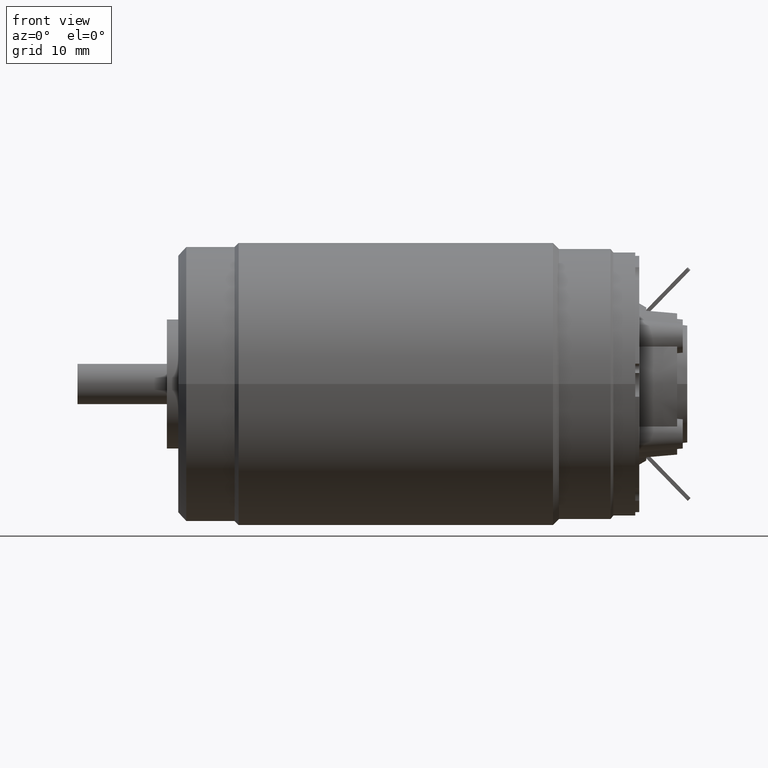
[diagram: clean part render]
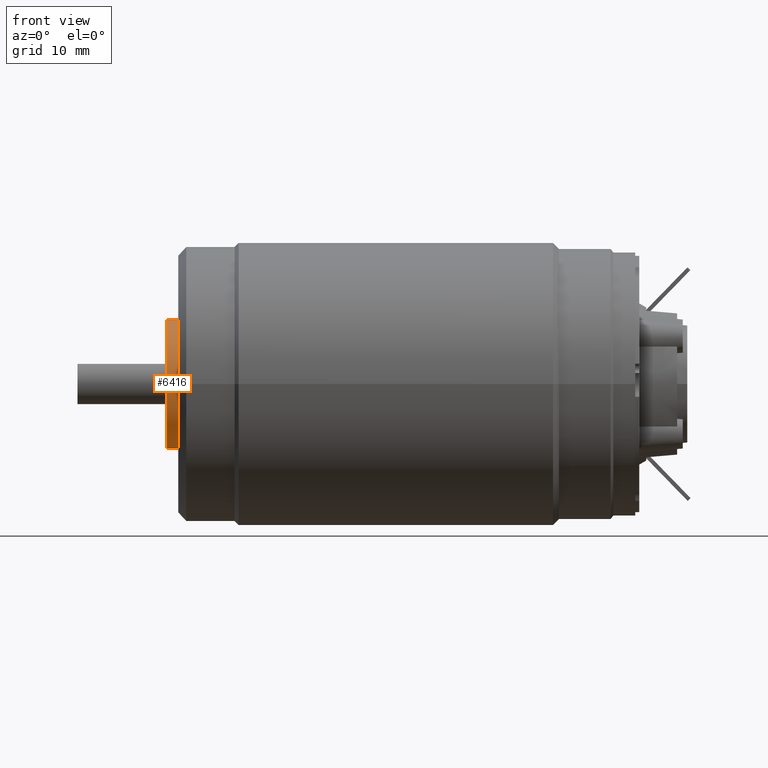
[diagram: same view with one face highlighted and labeled with its STEP entity id]
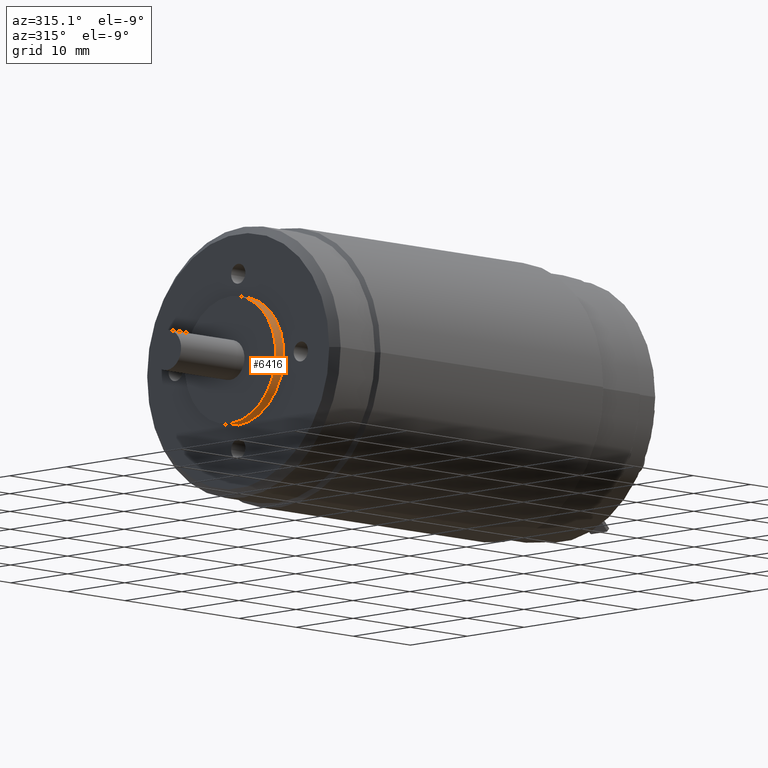
[diagram: same view with one face highlighted and labeled with its STEP entity id]
A machine part, front view. The second image highlights one B-rep face of the part: STEP entity #6416.
A second angle (auxiliary view) of the same face is appended — the face is thin or edge-on in the first view.
In plain terms, the highlighted cylindrical surface (partial cylindrical patch) has radius 8 mm, axis along (1, 0, 0).
Its self-contained STEP definition (entity closure, byte-faithful):
#2265=CARTESIAN_POINT('',(-4.996E1,0.E0,0.E0));
#2266=DIRECTION('',(1.E0,0.E0,0.E0));
#2267=DIRECTION('',(0.E0,0.E0,1.E0));
#2268=AXIS2_PLACEMENT_3D('',#2265,#2266,#2267);
#2315=CARTESIAN_POINT('',(-5.136E1,0.E0,0.E0));
#2316=DIRECTION('',(1.E0,0.E0,0.E0));
#2317=DIRECTION('',(0.E0,0.E0,1.E0));
#2318=AXIS2_PLACEMENT_3D('',#2315,#2316,#2317);
#2320=DIRECTION('',(1.E0,0.E0,0.E0));
#2321=VECTOR('',#2320,1.4E0);
#2322=CARTESIAN_POINT('',(-5.136E1,0.E0,8.E0));
#2323=LINE('',#2322,#2321);
#2329=DIRECTION('',(1.E0,0.E0,0.E0));
#2330=VECTOR('',#2329,1.4E0);
#2331=CARTESIAN_POINT('',(-5.136E1,0.E0,-8.E0));
#2332=LINE('',#2331,#2330);
#3520=CARTESIAN_POINT('',(-5.136E1,0.E0,8.E0));
#3521=CARTESIAN_POINT('',(-5.136E1,0.E0,-8.E0));
#3522=VERTEX_POINT('',#3520);
#3523=VERTEX_POINT('',#3521);
#3524=CARTESIAN_POINT('',(-4.996E1,0.E0,8.E0));
#3525=CARTESIAN_POINT('',(-4.996E1,0.E0,-8.E0));
#3526=VERTEX_POINT('',#3524);
#3527=VERTEX_POINT('',#3525);
#6402=CARTESIAN_POINT('',(-6.3085E1,0.E0,0.E0));
#6403=DIRECTION('',(1.E0,0.E0,0.E0));
#6404=DIRECTION('',(0.E0,0.E0,1.E0));
#6405=AXIS2_PLACEMENT_3D('',#6402,#6403,#6404);
#6406=CYLINDRICAL_SURFACE('',#6405,8.E0);
#6407=ORIENTED_EDGE('',*,*,#6371,.T.);
#6409=ORIENTED_EDGE('',*,*,#6408,.F.);
#6411=ORIENTED_EDGE('',*,*,#6410,.F.);
#6413=ORIENTED_EDGE('',*,*,#6412,.T.);
#6414=EDGE_LOOP('',(#6407,#6409,#6411,#6413));
#6415=FACE_OUTER_BOUND('',#6414,.F.);
#6416=ADVANCED_FACE('',(#6415),#6406,.T.);
#2269=CIRCLE('',#2268,8.E0);
#2319=CIRCLE('',#2318,8.E0);
#6371=EDGE_CURVE('',#3526,#3527,#2269,.T.);
#6408=EDGE_CURVE('',#3523,#3527,#2332,.T.);
#6410=EDGE_CURVE('',#3522,#3523,#2319,.T.);
#6412=EDGE_CURVE('',#3522,#3526,#2323,.T.);